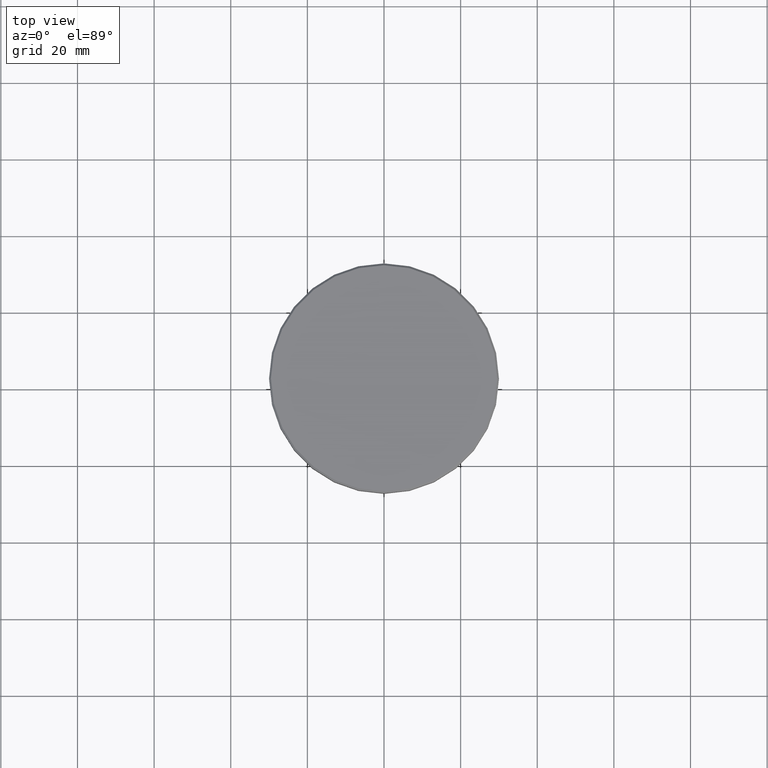
[diagram: clean part render]
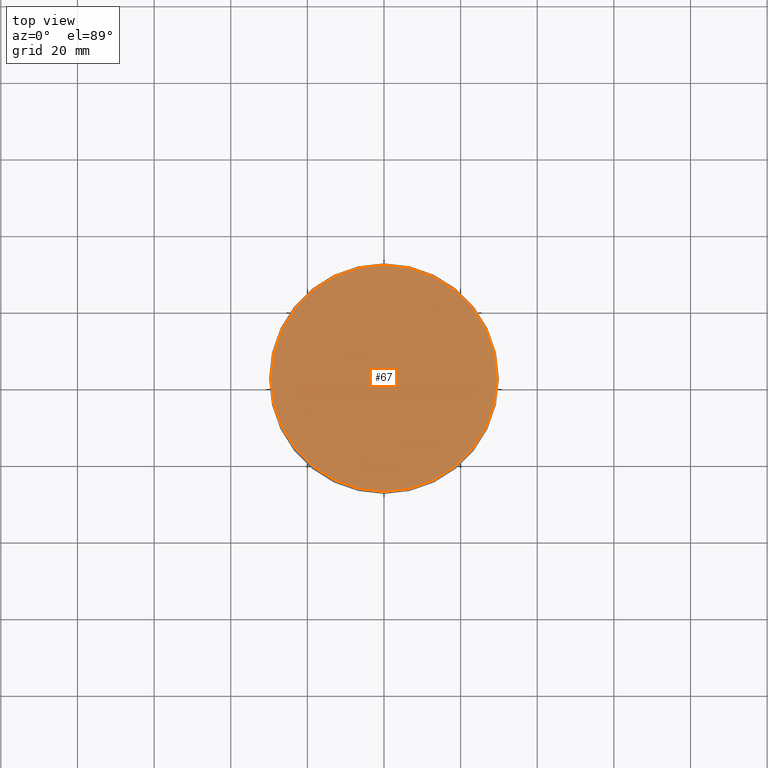
[diagram: same view with one face highlighted and labeled with its STEP entity id]
A machine part, top view. The second image highlights one B-rep face of the part: STEP entity #67.
In plain terms, the highlighted planar face has unit normal (0, -0, 1).
Its self-contained STEP definition (entity closure, byte-faithful):
#14 = DIRECTION ( 'NONE',  ( -0.000000000000000000, -0.000000000000000000, 1.000000000000000000 ) ) ;
#37 = CARTESIAN_POINT ( 'NONE',  ( 0.000000000000000000, 0.000000000000000000, 0.000000000000000000 ) ) ;
#67 = ADVANCED_FACE ( 'NONE', ( #270 ), #487, .T. ) ;
#81 = CARTESIAN_POINT ( 'NONE',  ( 0.000000000000000000, 0.000000000000000000, 0.000000000000000000 ) ) ;
#211 = VERTEX_POINT ( 'NONE', #1042 ) ;
#230 = DIRECTION ( 'NONE',  ( 1.000000000000000000, 0.000000000000000000, 0.000000000000000000 ) ) ;
#270 = FACE_OUTER_BOUND ( 'NONE', #460, .T. ) ;
#297 = CARTESIAN_POINT ( 'NONE',  ( 29.49999999999994316, 3.643324227463372235E-15, 0.000000000000000000 ) ) ;
#394 = DIRECTION ( 'NONE',  ( 0.000000000000000000, -0.000000000000000000, 1.000000000000000000 ) ) ;
#405 = EDGE_CURVE ( 'NONE', #508, #211, #1022, .T. ) ;
#416 = DIRECTION ( 'NONE',  ( -0.000000000000000000, -0.000000000000000000, 1.000000000000000000 ) ) ;
#445 = AXIS2_PLACEMENT_3D ( 'NONE', #37, #416, #230 ) ;
#460 = EDGE_LOOP ( 'NONE', ( #845, #939 ) ) ;
#473 = CARTESIAN_POINT ( 'NONE',  ( 0.000000000000000000, 0.000000000000000000, 0.000000000000000000 ) ) ;
#487 = PLANE ( 'NONE',  #755 ) ;
#508 = VERTEX_POINT ( 'NONE', #297 ) ;
#640 = AXIS2_PLACEMENT_3D ( 'NONE', #81, #14, #918 ) ;
#755 = AXIS2_PLACEMENT_3D ( 'NONE', #473, #394, #1138 ) ;
#845 = ORIENTED_EDGE ( 'NONE', *, *, #1080, .T. ) ;
#855 = CIRCLE ( 'NONE', #445, 29.49999999999994316 ) ;
#918 = DIRECTION ( 'NONE',  ( 1.000000000000000000, 0.000000000000000000, 0.000000000000000000 ) ) ;
#939 = ORIENTED_EDGE ( 'NONE', *, *, #405, .T. ) ;
#1022 = CIRCLE ( 'NONE', #640, 29.49999999999994316 ) ;
#1042 = CARTESIAN_POINT ( 'NONE',  ( -29.49999999999994316, 0.000000000000000000, 0.000000000000000000 ) ) ;
#1080 = EDGE_CURVE ( 'NONE', #211, #508, #855, .T. ) ;
#1138 = DIRECTION ( 'NONE',  ( 1.000000000000000000, 0.000000000000000000, 0.000000000000000000 ) ) ;